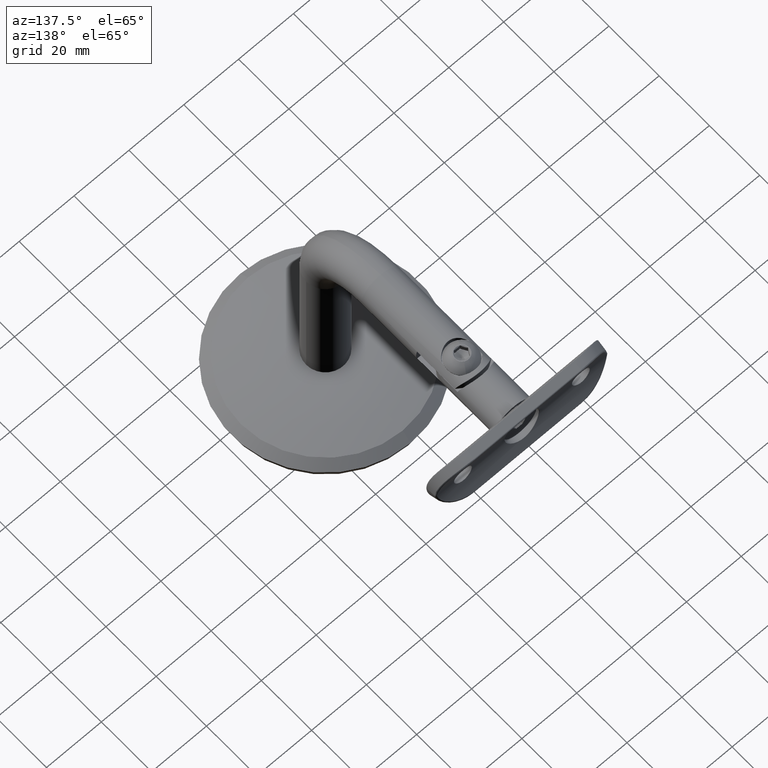
[diagram: clean part render]
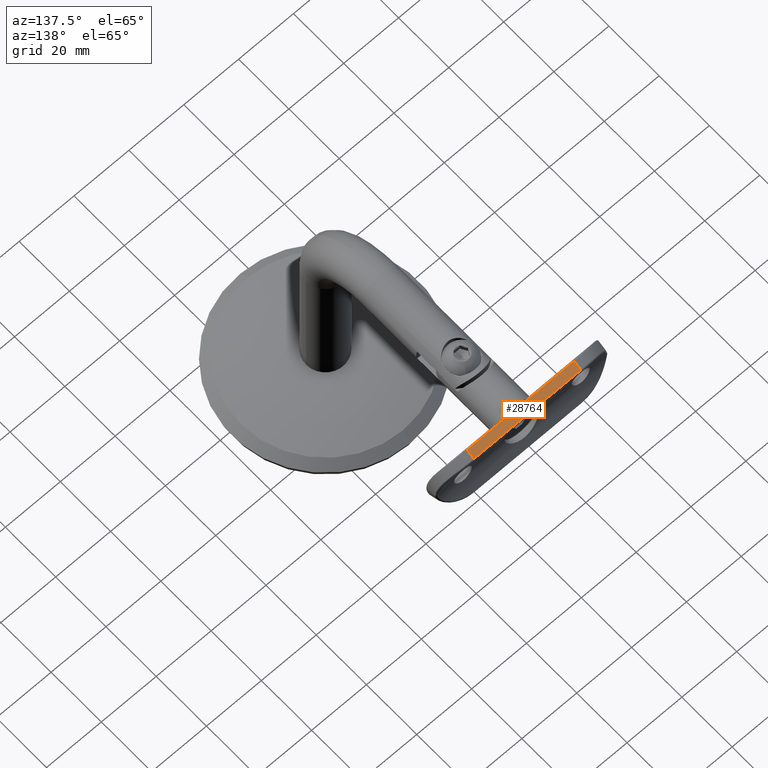
[diagram: same view with one face highlighted and labeled with its STEP entity id]
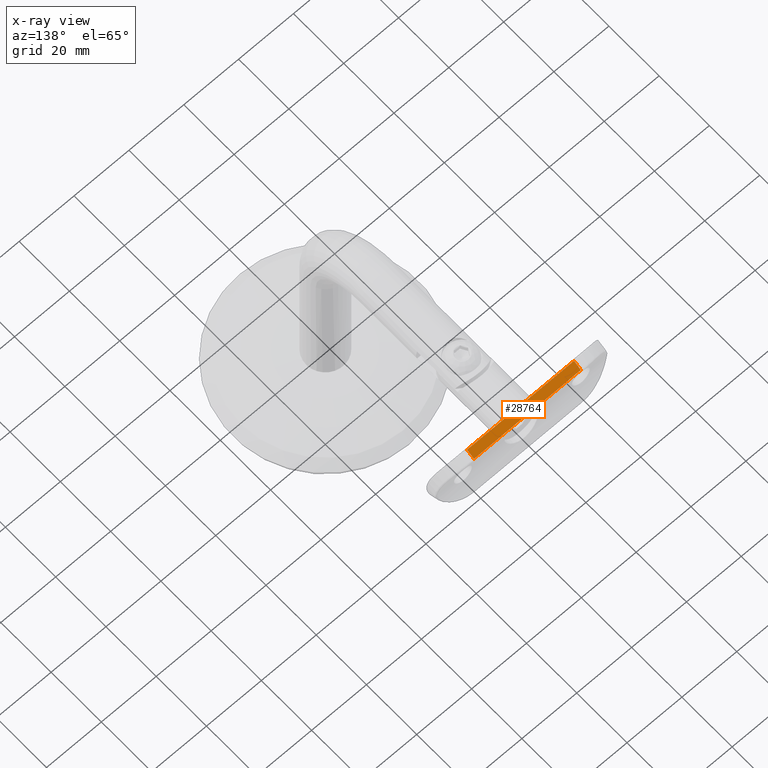
[diagram: x-ray of the same camera — body ghosted, the highlighted face saturated]
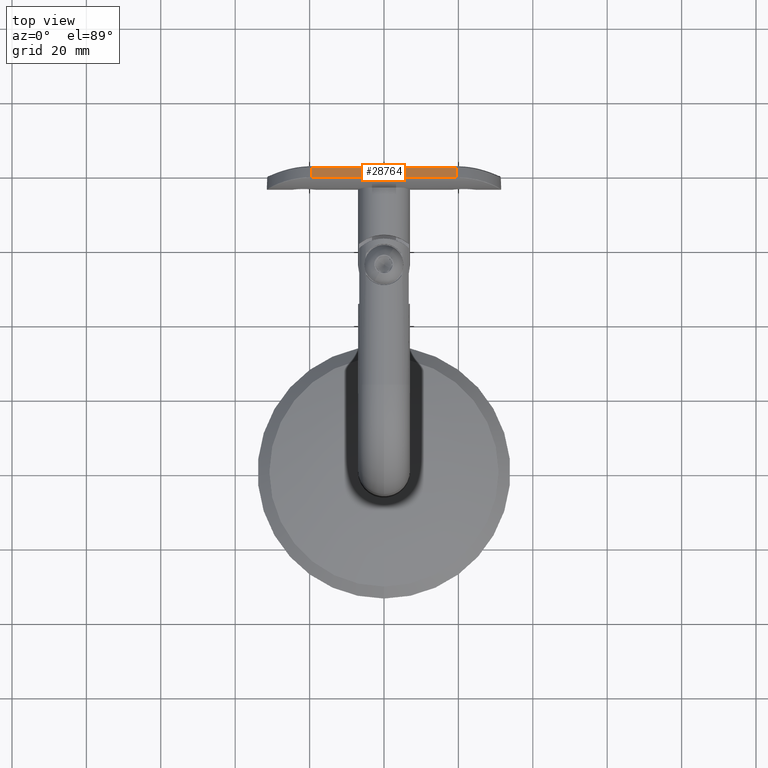
[diagram: same view with one face highlighted and labeled with its STEP entity id]
A machine part, auxiliary view. The second image highlights one B-rep face of the part: STEP entity #28764.
The next image is the same camera in x-ray: the body ghosted, the highlighted face saturated — about 0% of this face is hidden behind the body in this view.
A second angle (top view) of the same face is appended — the face is thin or edge-on in the first view.
In plain terms, the highlighted planar face has unit normal (-0, -0.4819, -0.8762).
Its self-contained STEP definition (entity closure, byte-faithful):
#507 = DIRECTION ( 'NONE',  ( -0.4819277108433742685, 0.8762109800277927407, 0.000000000000000000 ) ) ;
#4532 = VERTEX_POINT ( 'NONE', #40308 ) ;
#5298 = DIRECTION ( 'NONE',  ( -0.8762109800277927407, -0.4819277108433742685, 0.000000000000000000 ) ) ;
#5395 = LINE ( 'NONE', #33560, #23105 ) ;
#5900 = LINE ( 'NONE', #39406, #42520 ) ;
#7554 = ORIENTED_EDGE ( 'NONE', *, *, #17818, .T. ) ;
#8617 = EDGE_CURVE ( 'NONE', #9146, #16037, #5900, .T. ) ;
#8654 = EDGE_CURVE ( 'NONE', #10805, #4532, #39156, .T. ) ;
#9146 = VERTEX_POINT ( 'NONE', #28983 ) ;
#9862 = CARTESIAN_POINT ( 'NONE',  ( 10.45505487545767842, 2.191269701761552557, -19.50000000000000355 ) ) ;
#10805 = VERTEX_POINT ( 'NONE', #36578 ) ;
#11074 = ORIENTED_EDGE ( 'NONE', *, *, #8654, .T. ) ;
#15886 = ORIENTED_EDGE ( 'NONE', *, *, #8617, .T. ) ;
#16037 = VERTEX_POINT ( 'NONE', #9862 ) ;
#16887 = EDGE_CURVE ( 'NONE', #4532, #9146, #5395, .T. ) ;
#17603 = LINE ( 'NONE', #23300, #27576 ) ;
#17818 = EDGE_CURVE ( 'NONE', #16037, #10805, #17603, .T. ) ;
#18138 = DIRECTION ( 'NONE',  ( 0.4819277108433742685, -0.8762109800277927407, -0.000000000000000000 ) ) ;
#19551 = FACE_OUTER_BOUND ( 'NONE', #28453, .T. ) ;
#21016 = ORIENTED_EDGE ( 'NONE', *, *, #16887, .T. ) ;
#21997 = CARTESIAN_POINT ( 'NONE',  ( 11.99999999999999822, -0.6176534026920441622, 19.50000000000000000 ) ) ;
#23049 = VECTOR ( 'NONE', #18138, 1000.000000000000000 ) ;
#23105 = VECTOR ( 'NONE', #44412, 1000.000000000000000 ) ;
#23300 = CARTESIAN_POINT ( 'NONE',  ( 10.45505487545767842, 2.191269701761553002, 19.50000000000000000 ) ) ;
#27576 = VECTOR ( 'NONE', #37139, 1000.000000000000000 ) ;
#28453 = EDGE_LOOP ( 'NONE', ( #11074, #21016, #15886, #7554 ) ) ;
#28764 = ADVANCED_FACE ( 'NONE', ( #19551 ), #40794, .F. ) ;
#28983 = CARTESIAN_POINT ( 'NONE',  ( 11.95171006567578331, -0.5298556485316711084, -19.50000000000000355 ) ) ;
#29804 = CARTESIAN_POINT ( 'NONE',  ( 11.99999999999999822, -0.6176534026920446063, 31.50000000000000000 ) ) ;
#33560 = CARTESIAN_POINT ( 'NONE',  ( 11.95171006567578331, -0.5298556485316712195, 31.50000000000000000 ) ) ;
#36578 = CARTESIAN_POINT ( 'NONE',  ( 10.45505487545767842, 2.191269701761552557, 19.50000000000000000 ) ) ;
#36593 = DIRECTION ( 'NONE',  ( 0.4819277108433742685, -0.8762109800277927407, 0.000000000000000000 ) ) ;
#37139 = DIRECTION ( 'NONE',  ( 0.000000000000000000, 0.000000000000000000, 1.000000000000000000 ) ) ;
#39156 = LINE ( 'NONE', #21997, #23049 ) ;
#39406 = CARTESIAN_POINT ( 'NONE',  ( 11.99999999999999822, -0.6176534026920446063, -19.50000000000000355 ) ) ;
#40308 = CARTESIAN_POINT ( 'NONE',  ( 11.95171006567578331, -0.5298556485316709974, 19.50000000000000000 ) ) ;
#40661 = AXIS2_PLACEMENT_3D ( 'NONE', #29804, #5298, #36593 ) ;
#40794 = PLANE ( 'NONE',  #40661 ) ;
#42520 = VECTOR ( 'NONE', #507, 1000.000000000000000 ) ;
#44412 = DIRECTION ( 'NONE',  ( 0.000000000000000000, 0.000000000000000000, -1.000000000000000000 ) ) ;